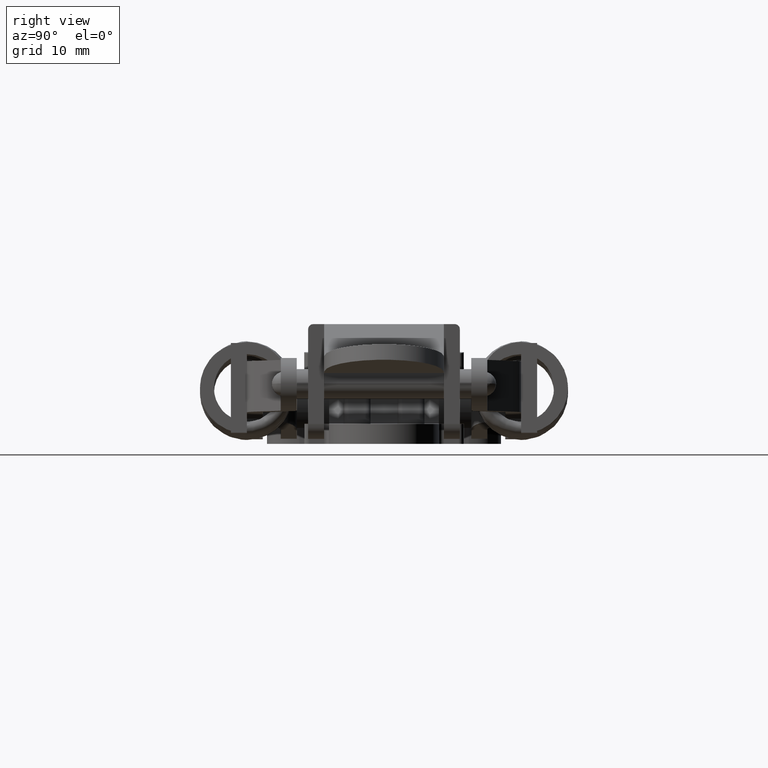
[diagram: clean part render]
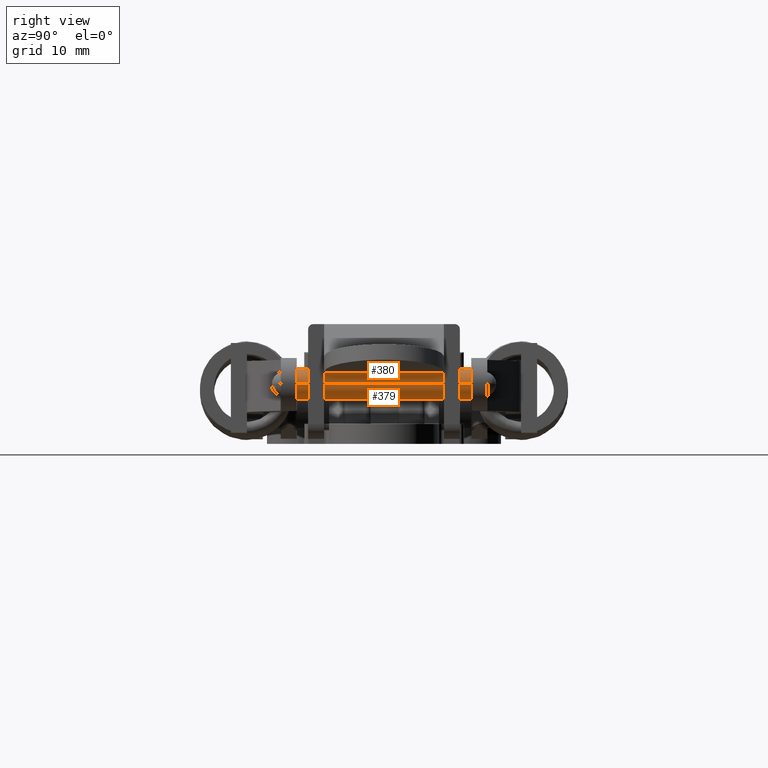
[diagram: same view with one multi-face feature highlighted, each face labeled with its STEP entity id]
A machine part, right view. The highlighted faces form ONE feature: a constant-radius fillet chain: 2 tangent blend faces with common blend radius 1.5 mm. The faces share edges in the B-rep.
Their STEP definitions:
[1] entity #379 (Cylinder):
#379=ADVANCED_FACE('',(#1515),#1514,.T.);
#1514=CYLINDRICAL_SURFACE('',#5017,1.50000000001E+00);
#1515=FACE_OUTER_BOUND('',#5018,.T.);
#5014=CARTESIAN_POINT('',(0.00000000000E+00,0.00000000000E+00,0.00000000000E+00));
#5015=DIRECTION('',(1.00000000000E+00,-0.00000000000E+00,0.00000000000E+00));
#5016=DIRECTION('',(0.00000000000E+00,4.44089209850E-16,-1.00000000000E+00));
#5017=AXIS2_PLACEMENT_3D('',#5014,#5015,#5016);
#5018=EDGE_LOOP('',(#13041,#13042,#13043,#13044));
#13041=ORIENTED_EDGE('',*,*,#14654,.T.);
#13042=ORIENTED_EDGE('',*,*,#14725,.F.);
#13043=ORIENTED_EDGE('',*,*,#14723,.F.);
#13044=ORIENTED_EDGE('',*,*,#14726,.T.);
#14654=EDGE_CURVE('',#16458,#16457,#16465,.T.);
#14723=EDGE_CURVE('',#16920,#16921,#16922,.T.);
#14725=EDGE_CURVE('',#16921,#16457,#16934,.T.);
#14726=EDGE_CURVE('',#16920,#16458,#16940,.T.);
#16457=VERTEX_POINT('',#22310);
#16458=VERTEX_POINT('',#22311);
#16465=CIRCLE('',#22319,1.50000000001E+00);
#16920=VERTEX_POINT('',#22580);
#16921=VERTEX_POINT('',#22581);
#16922=CIRCLE('',#22585,1.50000000001E+00);
#16934=(BOUNDED_CURVE() B_SPLINE_CURVE(1,(#22590,#22591),.UNSPECIFIED.,.F.,.F.) B_SPLINE_CURVE_WITH_KNOTS((2,2),(8.33333328360E-02,9.16666665505E-01),.UNSPECIFIED.) CURVE() GEOMETRIC_REPRESENTATION_ITEM() RATIONAL_B_SPLINE_CURVE((1.00000000000E+00,1.00000000000E+00)) REPRESENTATION_ITEM('') );
#16940=(BOUNDED_CURVE() B_SPLINE_CURVE(1,(#22592,#22593),.UNSPECIFIED.,.F.,.F.) B_SPLINE_CURVE_WITH_KNOTS((2,2),(8.33333333333E-02,9.16666666667E-01),.UNSPECIFIED.) CURVE() GEOMETRIC_REPRESENTATION_ITEM() RATIONAL_B_SPLINE_CURVE((7.50000000000E-01,7.50000000000E-01)) REPRESENTATION_ITEM('') );
#22310=CARTESIAN_POINT('',(8.74999999999E+00,-2.22044604925E-16,-1.50000000001E+00));
#22311=CARTESIAN_POINT('',(8.74999999999E+00,3.83536518504E-17,1.50000000001E+00));
#22316=CARTESIAN_POINT('',(8.74999999999E+00,0.00000000000E+00,0.00000000000E+00));
#22317=DIRECTION('',(-1.00000000000E+00,-0.00000000000E+00,0.00000000000E+00));
#22318=DIRECTION('',(-0.00000000000E+00,1.48029736616E-16,1.00000000000E+00));
#22319=AXIS2_PLACEMENT_3D('',#22316,#22317,#22318);
#22580=CARTESIAN_POINT('',(-8.74999999999E+00,-7.34763812300E-16,1.50000000001E+00));
#22581=CARTESIAN_POINT('',(-8.74999999999E+00,4.44089209850E-16,-1.50000000001E+00));
#22582=CARTESIAN_POINT('',(-8.74999999999E+00,0.00000000000E+00,0.00000000000E+00));
#22583=DIRECTION('',(-1.00000000000E+00,0.00000000000E+00,0.00000000000E+00));
#22584=DIRECTION('',(-0.00000000000E+00,-3.67381906148E-16,1.00000000000E+00));
#22585=AXIS2_PLACEMENT_3D('',#22582,#22583,#22584);
#22590=CARTESIAN_POINT('',(-8.75000001043E+00,6.66133814780E-16,-1.50000000001E+00));
#22591=CARTESIAN_POINT('',(8.74999997559E+00,6.66133814780E-16,-1.50000000001E+00));
#22592=CARTESIAN_POINT('',(-8.74999999999E+00,-7.40148683083E-16,1.50000000001E+00));
#22593=CARTESIAN_POINT('',(8.74999999999E+00,-7.40148683083E-16,1.50000000001E+00));
[2] entity #380 (Cylinder):
#380=ADVANCED_FACE('',(#1525),#1524,.T.);
#1524=CYLINDRICAL_SURFACE('',#5022,1.50000000001E+00);
#1525=FACE_OUTER_BOUND('',#5023,.T.);
#5019=CARTESIAN_POINT('',(0.00000000000E+00,0.00000000000E+00,0.00000000000E+00));
#5020=DIRECTION('',(1.00000000000E+00,-0.00000000000E+00,0.00000000000E+00));
#5021=DIRECTION('',(0.00000000000E+00,4.44089209850E-16,-1.00000000000E+00));
#5022=AXIS2_PLACEMENT_3D('',#5019,#5020,#5021);
#5023=EDGE_LOOP('',(#13045,#13046,#13047,#13048));
#13045=ORIENTED_EDGE('',*,*,#14724,.F.);
#13046=ORIENTED_EDGE('',*,*,#14725,.T.);
#13047=ORIENTED_EDGE('',*,*,#14653,.T.);
#13048=ORIENTED_EDGE('',*,*,#14726,.F.);
#14653=EDGE_CURVE('',#16457,#16458,#16459,.T.);
#14724=EDGE_CURVE('',#16921,#16920,#16928,.T.);
#14725=EDGE_CURVE('',#16921,#16457,#16934,.T.);
#14726=EDGE_CURVE('',#16920,#16458,#16940,.T.);
#16457=VERTEX_POINT('',#22310);
#16458=VERTEX_POINT('',#22311);
#16459=CIRCLE('',#22315,1.50000000001E+00);
#16920=VERTEX_POINT('',#22580);
#16921=VERTEX_POINT('',#22581);
#16928=CIRCLE('',#22589,1.50000000001E+00);
#16934=(BOUNDED_CURVE() B_SPLINE_CURVE(1,(#22590,#22591),.UNSPECIFIED.,.F.,.F.) B_SPLINE_CURVE_WITH_KNOTS((2,2),(8.33333328360E-02,9.16666665505E-01),.UNSPECIFIED.) CURVE() GEOMETRIC_REPRESENTATION_ITEM() RATIONAL_B_SPLINE_CURVE((1.00000000000E+00,1.00000000000E+00)) REPRESENTATION_ITEM('') );
#16940=(BOUNDED_CURVE() B_SPLINE_CURVE(1,(#22592,#22593),.UNSPECIFIED.,.F.,.F.) B_SPLINE_CURVE_WITH_KNOTS((2,2),(8.33333333333E-02,9.16666666667E-01),.UNSPECIFIED.) CURVE() GEOMETRIC_REPRESENTATION_ITEM() RATIONAL_B_SPLINE_CURVE((7.50000000000E-01,7.50000000000E-01)) REPRESENTATION_ITEM('') );
#22310=CARTESIAN_POINT('',(8.74999999999E+00,-2.22044604925E-16,-1.50000000001E+00));
#22311=CARTESIAN_POINT('',(8.74999999999E+00,3.83536518504E-17,1.50000000001E+00));
#22312=CARTESIAN_POINT('',(8.74999999999E+00,0.00000000000E+00,0.00000000000E+00));
#22313=DIRECTION('',(-1.00000000000E+00,-0.00000000000E+00,0.00000000000E+00));
#22314=DIRECTION('',(-0.00000000000E+00,1.48029736616E-16,1.00000000000E+00));
#22315=AXIS2_PLACEMENT_3D('',#22312,#22313,#22314);
#22580=CARTESIAN_POINT('',(-8.74999999999E+00,-7.34763812300E-16,1.50000000001E+00));
#22581=CARTESIAN_POINT('',(-8.74999999999E+00,4.44089209850E-16,-1.50000000001E+00));
#22586=CARTESIAN_POINT('',(-8.74999999999E+00,0.00000000000E+00,0.00000000000E+00));
#22587=DIRECTION('',(-1.00000000000E+00,0.00000000000E+00,0.00000000000E+00));
#22588=DIRECTION('',(-0.00000000000E+00,-3.67381906148E-16,1.00000000000E+00));
#22589=AXIS2_PLACEMENT_3D('',#22586,#22587,#22588);
#22590=CARTESIAN_POINT('',(-8.75000001043E+00,6.66133814780E-16,-1.50000000001E+00));
#22591=CARTESIAN_POINT('',(8.74999997559E+00,6.66133814780E-16,-1.50000000001E+00));
#22592=CARTESIAN_POINT('',(-8.74999999999E+00,-7.40148683083E-16,1.50000000001E+00));
#22593=CARTESIAN_POINT('',(8.74999999999E+00,-7.40148683083E-16,1.50000000001E+00));